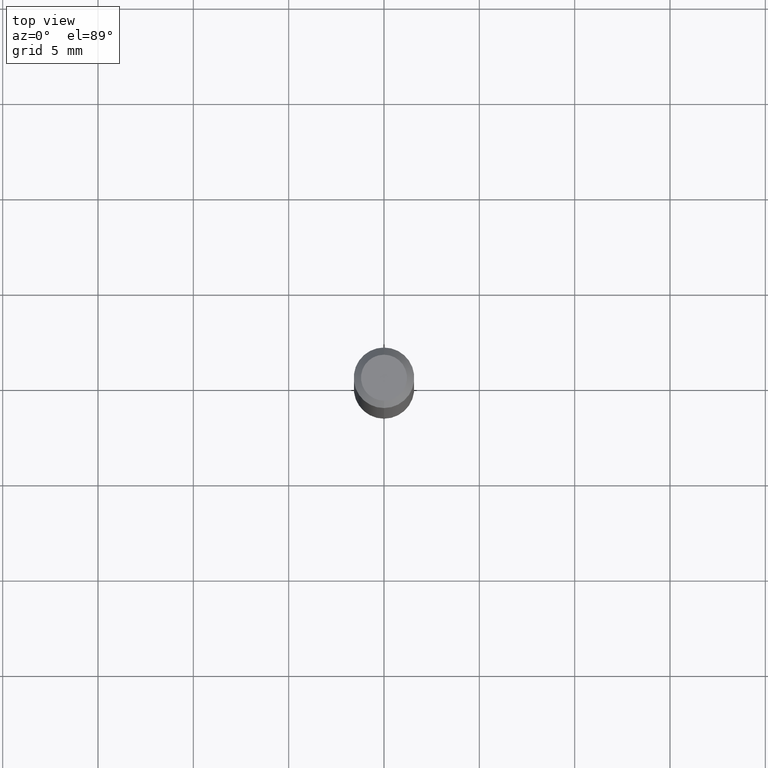
[diagram: clean part render]
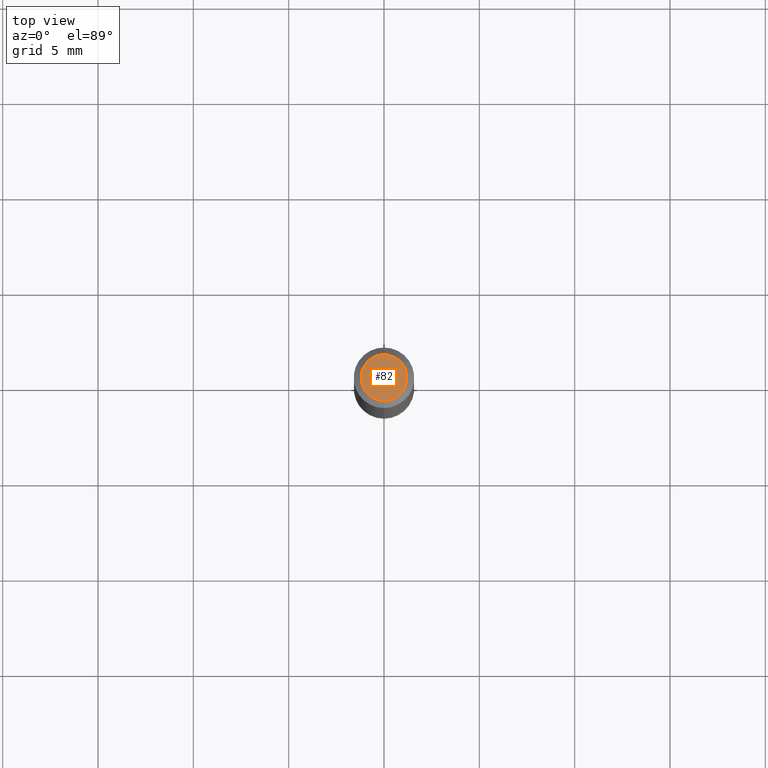
[diagram: same view with one face highlighted and labeled with its STEP entity id]
A machine part, top view. The second image highlights one B-rep face of the part: STEP entity #82.
In plain terms, the highlighted planar face has unit normal (0, -0, -1).
Its self-contained STEP definition (entity closure, byte-faithful):
#3 = PLANE ( 'NONE',  #389 ) ;
#7 = CARTESIAN_POINT ( 'NONE',  ( -3.773273898774340269E-16, -0.04749999999999999362, 1.569832887530797755E-16 ) ) ;
#34 = AXIS2_PLACEMENT_3D ( 'NONE', #272, #434, #276 ) ;
#44 = DIRECTION ( 'NONE',  ( 6.982962677686265922E-15, 1.000000000000000000, -3.491462862525897925E-15 ) ) ;
#54 = CARTESIAN_POINT ( 'NONE',  ( 2.166989570604911121E-46, -3.093854100032544712E-32, -8.861197216900356760E-18 ) ) ;
#66 = EDGE_CURVE ( 'NONE', #217, #449, #442, .T. ) ;
#74 = AXIS2_PLACEMENT_3D ( 'NONE', #54, #125, #398 ) ;
#82 = ADVANCED_FACE ( 'NONE', ( #508 ), #3, .F. ) ;
#111 = DIRECTION ( 'NONE',  ( 2.445481708128512303E-29, -3.491462862525897925E-15, -1.000000000000000000 ) ) ;
#125 = DIRECTION ( 'NONE',  ( -2.445481708128512584E-29, 3.491462862525897925E-15, 1.000000000000000000 ) ) ;
#146 = ORIENTED_EDGE ( 'NONE', *, *, #418, .T. ) ;
#156 = CARTESIAN_POINT ( 'NONE',  ( 3.316907271900976096E-16, 0.04749999999999999362, -1.702750845784303414E-16 ) ) ;
#185 = ORIENTED_EDGE ( 'NONE', *, *, #66, .T. ) ;
#194 = CARTESIAN_POINT ( 'NONE',  ( 3.840629472727447874E-16, 0.04749999999999999362, -1.747056831868805136E-16 ) ) ;
#197 = CIRCLE ( 'NONE', #74, 0.04749999999999999362 ) ;
#217 = VERTEX_POINT ( 'NONE', #194 ) ;
#272 = CARTESIAN_POINT ( 'NONE',  ( 2.166989570604911121E-46, -3.093854100032544712E-32, -8.861197216900356760E-18 ) ) ;
#276 = DIRECTION ( 'NONE',  ( -6.982962677686266711E-15, -1.000000000000000000, 3.491462862525898320E-15 ) ) ;
#299 = EDGE_LOOP ( 'NONE', ( #185, #146 ) ) ;
#389 = AXIS2_PLACEMENT_3D ( 'NONE', #156, #111, #44 ) ;
#398 = DIRECTION ( 'NONE',  ( -6.982962677686266711E-15, -1.000000000000000000, 3.491462862525898320E-15 ) ) ;
#418 = EDGE_CURVE ( 'NONE', #449, #217, #197, .T. ) ;
#434 = DIRECTION ( 'NONE',  ( -2.445481708128512584E-29, 3.491462862525897925E-15, 1.000000000000000000 ) ) ;
#442 = CIRCLE ( 'NONE', #34, 0.04749999999999999362 ) ;
#449 = VERTEX_POINT ( 'NONE', #7 ) ;
#508 = FACE_OUTER_BOUND ( 'NONE', #299, .T. ) ;